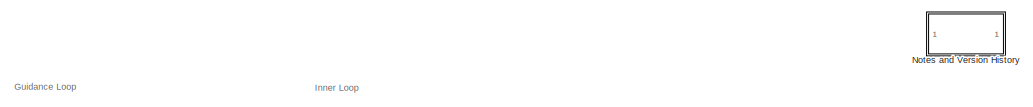
[diagram: root canvas - part 1/4, top center region]
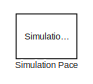
[diagram: root canvas - part 2/4, top left region]
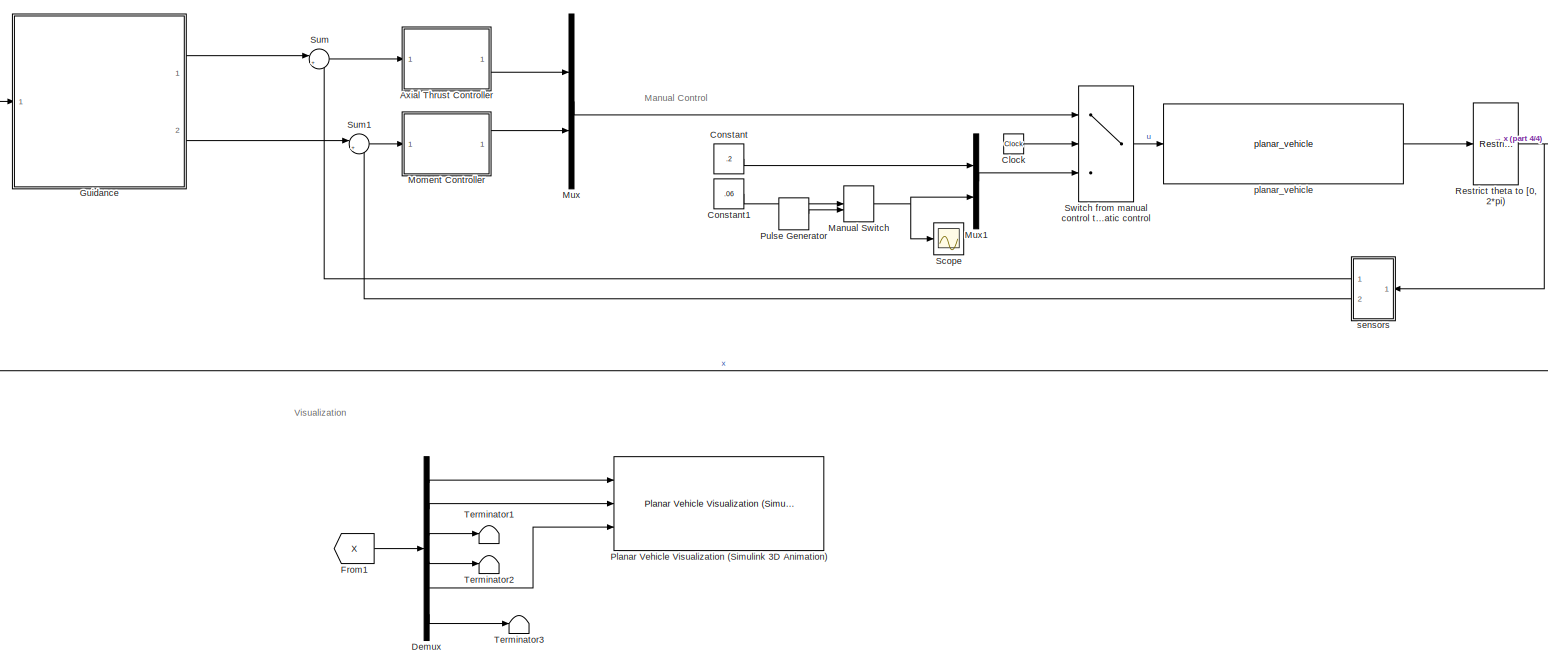
[diagram: root canvas - part 3/4, most of the canvas]
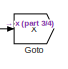
[diagram: root canvas - part 4/4, middle right region]
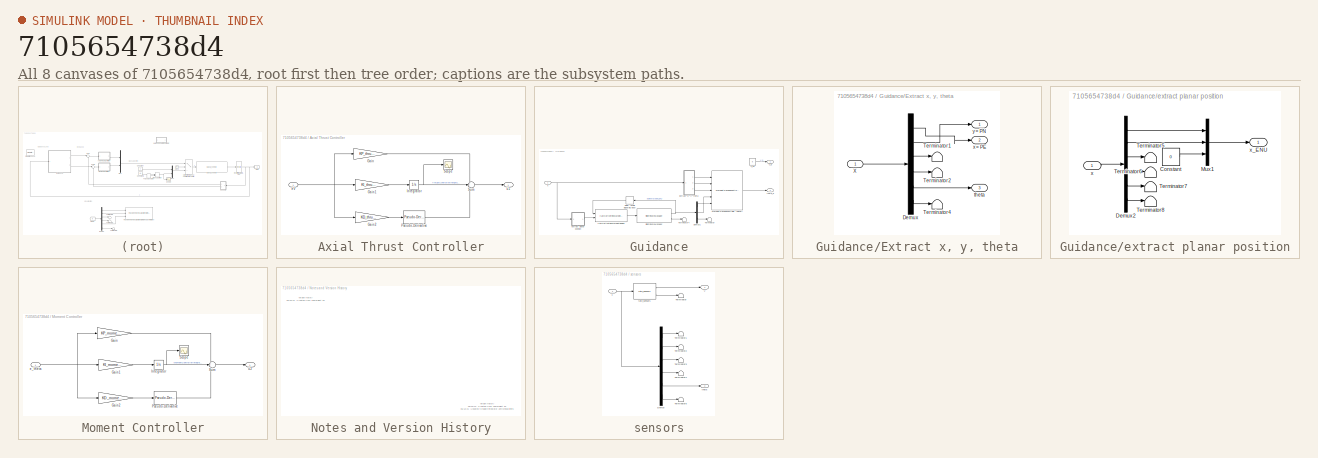
[diagram: thumbnail index - all 8 canvases of the model, root first then tree order]
MODEL slx_7105654738d4
KIND model
CONFIG AbsTol = auto
CONFIG EnableMultiTasking = off
CONFIG FixedStep = auto
CONFIG MaxStep = deltaTMax
CONFIG MinStep = auto
CONFIG RelTol = 1e-3
CONFIG SampleTimeConstraint = Unconstrained
CONFIG Solver = VariableStepAuto
CONFIG SolverName = VariableStepAuto
CONFIG StartTime = 0.0
CONFIG StopTime = t_final
BLOCK [SubSystem] Axial Thrust Controller
  Ports = [1, 1]
  RequestExecContextInheritance = off
BLOCK [Gain] Axial Thrust Controller/Gain
  Gain = KP_thrust
  OutDataTypeStr = Inherit: Inherit via internal rule
  ParamDataTypeStr = Inherit: Inherit via internal rule
  SaturateOnIntegerOverflow = off
BLOCK [Gain] Axial Thrust Controller/Gain1
  Gain = KI_thrust
  OutDataTypeStr = Inherit: Inherit via internal rule
  ParamDataTypeStr = Inherit: Inherit via internal rule
  SaturateOnIntegerOverflow = off
BLOCK [Gain] Axial Thrust Controller/Gain2
  Gain = KD_thrust
  OutDataTypeStr = Inherit: Inherit via internal rule
  ParamDataTypeStr = Inherit: Inherit via internal rule
  SaturateOnIntegerOverflow = off
BLOCK [Integrator] Axial Thrust Controller/Integrator
  LowerSaturationLimit = -xILimitThrust
  Ports = [1, 1]
  UpperSaturationLimit = xILimitThrust
BLOCK [Reference] Axial Thrust Controller/Pseudo-Derivative  REF=UWControlsBlockset/Pseudo-Derivative
  Ports = [1, 1]
  SourceBlock = UWControlsBlockset/Pseudo-Derivative
BLOCK [Scope] Axial Thrust Controller/Scope
  Floating = off
  NumInputPorts = 1
  Ports = [1]
  ScopeSpecificationString = Simulink.scopes.TimeScopeBlockCfg('CurrentConfiguration', extmgr.ConfigurationSet(extmgr.Configuration('Core','General UI',true),extmgr.Configuration('Core','Source UI',true),extmgr.Configuration('Sources','WiredSimulink',true,'DataLoggingVariableName','ScopeData1'),extmgr.Configuration('Visuals','Time Domain',true,'SerializedDisplays',{struct('MinYLimReal','-1.00000','MaxYLimReal','1.00000','YLab...<+1420ch>
BLOCK [Sum] Axial Thrust Controller/Sum
  IconShape = round
  InputSameDT = off
  Inputs = +++
  OutDataTypeStr = Inherit: Inherit via internal rule
  Ports = [3, 1]
  SaturateOnIntegerOverflow = off
BLOCK [Inport] Axial Thrust Controller/eV
  IconDisplay = Port number
BLOCK [Outport] Axial Thrust Controller/u1
  IconDisplay = Port number
BLOCK [Clock] Clock
BLOCK [Constant] Constant
  Value = .2
BLOCK [Constant] Constant1
  Value = .06
BLOCK [Demux] Demux
  DisplayOption = bar
  Outputs = 6
  Ports = [1, 6]
BLOCK [From] From1
  GotoTag = X
BLOCK [Goto] Goto
  GotoTag = X
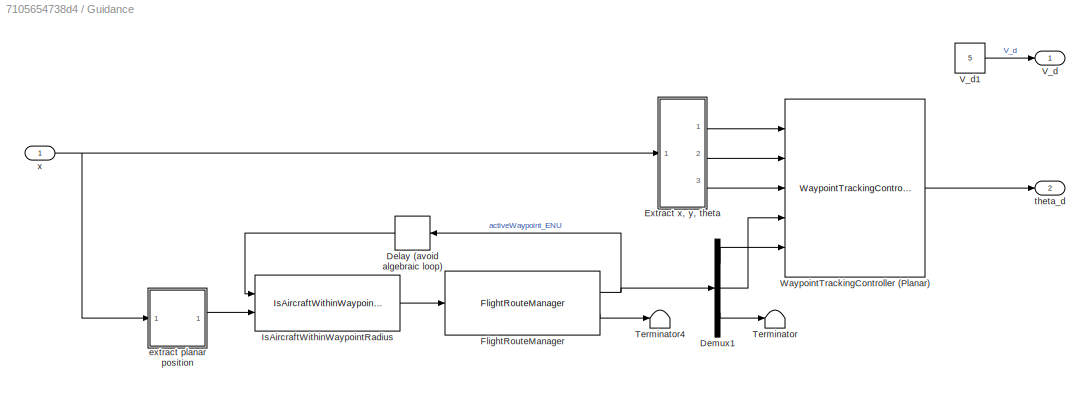
BLOCK [SubSystem] Guidance
  Ports = [1, 2]
  RequestExecContextInheritance = off
BLOCK [Delay] Guidance/Delay (avoid algebraic loop)
  DelayLength = 1
  InputPortMap = u0
  Ports = [1, 1]
BLOCK [Demux] Guidance/Demux1
  DisplayOption = bar
  Outputs = 3
  Ports = [1, 3]
BLOCK [SubSystem] Guidance/Extract x, y, theta
  Ports = [1, 3]
  RequestExecContextInheritance = off
BLOCK [Demux] Guidance/Extract x, y, theta/Demux
  DisplayOption = bar
  Outputs = 6
  Ports = [1, 6]
BLOCK [Terminator] Guidance/Extract x, y, theta/Terminator1
BLOCK [Terminator] Guidance/Extract x, y, theta/Terminator2
BLOCK [Terminator] Guidance/Extract x, y, theta/Terminator4
BLOCK [Inport] Guidance/Extract x, y, theta/X
  IconDisplay = Port number
BLOCK [Outport] Guidance/Extract x, y, theta/theta
  IconDisplay = Port number
  Port = 3
BLOCK [Outport] Guidance/Extract x, y, theta/x = PE
  IconDisplay = Port number
  Port = 2
BLOCK [Outport] Guidance/Extract x, y, theta/y = PN
  IconDisplay = Port number
BLOCK [Reference] Guidance/FlightRouteManager  REF=UWAerospaceBlockset_Controllers/FlightRouteManager
  Ports = [1, 2]
  SourceBlock = UWAerospaceBlockset_Controllers/FlightRouteManager
BLOCK [Reference] Guidance/IsAircraftWithinWaypointRadius  REF=UWAerospaceBlockset_Controllers/IsAircraftWithinWaypointRadius
  Ports = [2, 1]
  SourceBlock = UWAerospaceBlockset_Controllers/IsAircraftWithinWaypointRadius
BLOCK [Terminator] Guidance/Terminator
BLOCK [Terminator] Guidance/Terminator4
BLOCK [Outport] Guidance/V_d
  IconDisplay = Port number
BLOCK [Constant] Guidance/V_d1
  Value = 5
BLOCK [Reference] Guidance/WaypointTrackingController (Planar)  REF=UWAerospaceBlockset_Controllers/WaypointTrackingController (Planar)
  Ports = [5, 1]
  SourceBlock = UWAerospaceBlockset_Controllers/WaypointTrackingController (Planar)
BLOCK [SubSystem] Guidance/extract planar position
  Ports = [1, 1]
  RequestExecContextInheritance = off
BLOCK [Constant] Guidance/extract planar position/Constant
  Value = 0
BLOCK [Demux] Guidance/extract planar position/Demux2
  DisplayOption = bar
  Outputs = 6
  Ports = [1, 6]
BLOCK [Mux] Guidance/extract planar position/Mux1
  DisplayOption = bar
  Inputs = 3
  Ports = [3, 1]
BLOCK [Terminator] Guidance/extract planar position/Terminator5
BLOCK [Terminator] Guidance/extract planar position/Terminator6
BLOCK [Terminator] Guidance/extract planar position/Terminator7
BLOCK [Terminator] Guidance/extract planar position/Terminator8
BLOCK [Inport] Guidance/extract planar position/x
  IconDisplay = Port number
BLOCK [Outport] Guidance/extract planar position/x_ENU
  IconDisplay = Port number
BLOCK [Outport] Guidance/theta_d
  IconDisplay = Port number
  Port = 2
BLOCK [Inport] Guidance/x
  IconDisplay = Port number
BLOCK [ManualSwitch] Manual Switch
  CurrentSetting = 0
BLOCK [SubSystem] Moment Controller
  Ports = [1, 1]
  RequestExecContextInheritance = off
BLOCK [Gain] Moment Controller/Gain
  Gain = KP_moment
  OutDataTypeStr = Inherit: Inherit via internal rule
  ParamDataTypeStr = Inherit: Inherit via internal rule
  SaturateOnIntegerOverflow = off
BLOCK [Gain] Moment Controller/Gain1
  Gain = KI_moment
  OutDataTypeStr = Inherit: Inherit via internal rule
  ParamDataTypeStr = Inherit: Inherit via internal rule
  SaturateOnIntegerOverflow = off
BLOCK [Gain] Moment Controller/Gain2
  Gain = KD_moment
  OutDataTypeStr = Inherit: Inherit via internal rule
  ParamDataTypeStr = Inherit: Inherit via internal rule
  SaturateOnIntegerOverflow = off
BLOCK [Integrator] Moment Controller/Integrator
  LimitOutput = on
  LowerSaturationLimit = -xILimitMoment
  Ports = [1, 1]
  UpperSaturationLimit = xILimitMoment
BLOCK [Reference] Moment Controller/Pseudo-Derivative  REF=UWControlsBlockset/Pseudo-Derivative
  Ports = [1, 1]
  SourceBlock = UWControlsBlockset/Pseudo-Derivative
BLOCK [Scope] Moment Controller/Scope
  Floating = off
  NumInputPorts = 1
  Ports = [1]
  ScopeSpecificationString = Simulink.scopes.TimeScopeBlockCfg('CurrentConfiguration', extmgr.ConfigurationSet(extmgr.Configuration('Core','General UI',true),extmgr.Configuration('Core','Source UI',true),extmgr.Configuration('Sources','WiredSimulink',true),extmgr.Configuration('Visuals','Time Domain',true,'SerializedDisplays',{struct('MinYLimReal','-3.5144','MaxYLimReal','0.41697','YLabelReal','','MinYLimMag','0.00000','MaxYL...<+1380ch>
BLOCK [Sum] Moment Controller/Sum
  IconShape = round
  InputSameDT = off
  Inputs = +++
  OutDataTypeStr = Inherit: Inherit via internal rule
  Ports = [3, 1]
  SaturateOnIntegerOverflow = off
BLOCK [Inport] Moment Controller/e_theta
  IconDisplay = Port number
BLOCK [Outport] Moment Controller/u2
  IconDisplay = Port number
BLOCK [Mux] Mux
  DisplayOption = bar
  Inputs = 2
  Ports = [2, 1]
BLOCK [Mux] Mux1
  DisplayOption = bar
  Inputs = 2
  Ports = [2, 1]
BLOCK [SubSystem] Notes and Version History
  Ports = []
  RequestExecContextInheritance = off
BLOCK [Reference] Planar Vehicle Visualization (Simulink 3D Animation)  REF=PlanarVehicle/Planar Vehicle Visualization (Simulink 3D Animation)
  Ports = [3]
  SourceBlock = PlanarVehicle/Planar Vehicle Visualization (Simulink 3D Animation)
BLOCK [DiscretePulseGenerator] Pulse Generator
  Period = 100
  Ports = [0, 1]
  PulseType = Time based
  PulseWidth = 4.7
BLOCK [Reference] Restrict theta to [0, 2*pi)  REF=PlanarVehicle/Restrict theta to [0, 2*pi)
  Ports = [1, 1]
  SourceBlock = PlanarVehicle/Restrict theta to [0, 2*pi)
  SourceType = SubSystem
BLOCK [Scope] Scope
  Floating = off
  NumInputPorts = 1
  Ports = [1]
  ScopeSpecificationString = Simulink.scopes.TimeScopeBlockCfg('CurrentConfiguration', extmgr.ConfigurationSet(extmgr.Configuration('Core','General UI',true),extmgr.Configuration('Core','Source UI',true),extmgr.Configuration('Sources','WiredSimulink',true,'DataLoggingVariableName','ScopeData1'),extmgr.Configuration('Visuals','Time Domain',true,'SerializedDisplays',{struct('MinYLimReal','-0.125','MaxYLimReal','1.125','YLabelRe...<+1415ch>
BLOCK [Reference] Simulation Pace  REF=aerolibanimutils/Simulation Pace
  AttributesFormatString = %<SleepMode>\n%<SimulationPace> sec/sec
  Commented = on
  Ports = []
  SourceBlock = aerolibanimutils/Simulation Pace
  SourceProductBaseCode = AE
  SourceProductName = Aerospace Blockset
  SourceType = Simulation Pace
BLOCK [Sum] Sum
  IconShape = round
  InputSameDT = off
  Inputs = |+-
  OutDataTypeStr = Inherit: Inherit via internal rule
  Ports = [2, 1]
  SaturateOnIntegerOverflow = off
BLOCK [Sum] Sum1
  IconShape = round
  InputSameDT = off
  Inputs = |+-
  OutDataTypeStr = Inherit: Inherit via internal rule
  Ports = [2, 1]
  SaturateOnIntegerOverflow = off
BLOCK [Switch] Switch from manual control to automatic control
  InputSameDT = off
  SaturateOnIntegerOverflow = off
  Threshold = switchTime
BLOCK [Terminator] Terminator1
BLOCK [Terminator] Terminator2
BLOCK [Terminator] Terminator3
BLOCK [Reference] planar_vehicle  REF=PlanarVehicle/planar_vehicle
  Ports = [1, 1]
  SourceBlock = PlanarVehicle/planar_vehicle
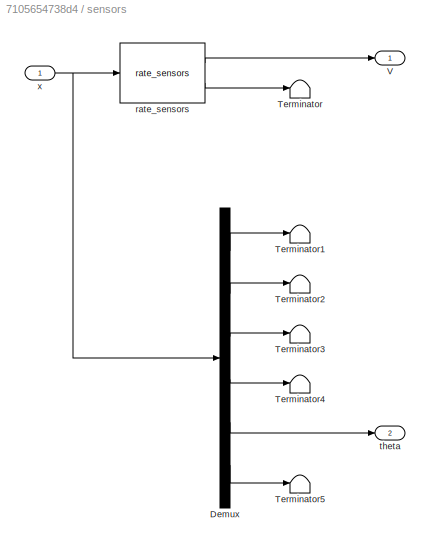
BLOCK [SubSystem] sensors
  Ports = [1, 2]
  RequestExecContextInheritance = off
BLOCK [Demux] sensors/Demux
  DisplayOption = bar
  Outputs = 6
  Ports = [1, 6]
BLOCK [Terminator] sensors/Terminator
BLOCK [Terminator] sensors/Terminator1
BLOCK [Terminator] sensors/Terminator2
BLOCK [Terminator] sensors/Terminator3
BLOCK [Terminator] sensors/Terminator4
BLOCK [Terminator] sensors/Terminator5
BLOCK [Outport] sensors/V
  IconDisplay = Port number
BLOCK [Reference] sensors/rate_sensors  REF=PlanarVehicle/rate_sensors
  Ports = [1, 2]
  SourceBlock = PlanarVehicle/rate_sensors
BLOCK [Outport] sensors/theta
  IconDisplay = Port number
  Port = 2
BLOCK [Inport] sensors/x
  IconDisplay = Port number
ANNOTATION (root): Guidance Loop
ANNOTATION (root): Inner Loop
ANNOTATION (root): Manual Control
ANNOTATION (root): Visualization
ANNOTATION Notes and Version History: Version History 05/02/21: Created from final project p2
ANNOTATION Notes and Version History: Version History 05/02/21: Created from final project p2 05/12/21: Updated to isolate integrator anti-windup limits
LINE Axial Thrust Controller/Gain1:1 -> Axial Thrust Controller/Integrator:1
LINE Axial Thrust Controller/Gain2:1 -> Axial Thrust Controller/Pseudo-Derivative:1
LINE Axial Thrust Controller/Gain:1 -> Axial Thrust Controller/Sum:1
NET Axial Thrust Controller/Integrator:1 -> Axial Thrust Controller/Scope:1, Axial Thrust Controller/Sum:2
LINE Axial Thrust Controller/Pseudo-Derivative:1 -> Axial Thrust Controller/Sum:3
LINE Axial Thrust Controller/Sum:1 -> Axial Thrust Controller/u1:1
NET Axial Thrust Controller/eV:1 -> Axial Thrust Controller/Gain1:1, Axial Thrust Controller/Gain2:1, Axial Thrust Controller/Gain:1
LINE Axial Thrust Controller:1 -> Mux:1
LINE Clock:1 -> Switch from manual control to automatic control:2
LINE Constant1:1 -> Manual Switch:1
LINE Constant:1 -> Mux1:1
LINE Demux:1 -> Planar Vehicle Visualization (Simulink 3D Animation):1
LINE Demux:2 -> Planar Vehicle Visualization (Simulink 3D Animation):2
LINE Demux:3 -> Terminator1:1
LINE Demux:4 -> Terminator2:1
LINE Demux:5 -> Planar Vehicle Visualization (Simulink 3D Animation):3
LINE Demux:6 -> Terminator3:1
LINE From1:1 -> Demux:1
LINE Guidance/Delay (avoid algebraic loop):1 -> Guidance/IsAircraftWithinWaypointRadius:1
LINE Guidance/Demux1:1 -> Guidance/WaypointTrackingController (Planar):5
LINE Guidance/Demux1:2 -> Guidance/WaypointTrackingController (Planar):4
LINE Guidance/Demux1:3 -> Guidance/Terminator:1
LINE Guidance/Extract x, y, theta/Demux:1 -> Guidance/Extract x, y, theta/x = PE:1
LINE Guidance/Extract x, y, theta/Demux:2 -> Guidance/Extract x, y, theta/y = PN:1
LINE Guidance/Extract x, y, theta/Demux:3 -> Guidance/Extract x, y, theta/Terminator1:1
LINE Guidance/Extract x, y, theta/Demux:4 -> Guidance/Extract x, y, theta/Terminator2:1
LINE Guidance/Extract x, y, theta/Demux:5 -> Guidance/Extract x, y, theta/theta:1
LINE Guidance/Extract x, y, theta/Demux:6 -> Guidance/Extract x, y, theta/Terminator4:1
LINE Guidance/Extract x, y, theta/X:1 -> Guidance/Extract x, y, theta/Demux:1
LINE Guidance/Extract x, y, theta:1 -> Guidance/WaypointTrackingController (Planar):1
LINE Guidance/Extract x, y, theta:2 -> Guidance/WaypointTrackingController (Planar):2
LINE Guidance/Extract x, y, theta:3 -> Guidance/WaypointTrackingController (Planar):3
NET Guidance/FlightRouteManager:1 -> Guidance/Delay (avoid algebraic loop):1, Guidance/Demux1:1
LINE Guidance/FlightRouteManager:2 -> Guidance/Terminator4:1
LINE Guidance/IsAircraftWithinWaypointRadius:1 -> Guidance/FlightRouteManager:1
LINE Guidance/V_d1:1 -> Guidance/V_d:1
LINE Guidance/WaypointTrackingController (Planar):1 -> Guidance/theta_d:1
LINE Guidance/extract planar position/Constant:1 -> Guidance/extract planar position/Mux1:3
LINE Guidance/extract planar position/Demux2:1 -> Guidance/extract planar position/Mux1:1
LINE Guidance/extract planar position/Demux2:2 -> Guidance/extract planar position/Mux1:2
LINE Guidance/extract planar position/Demux2:3 -> Guidance/extract planar position/Terminator5:1
LINE Guidance/extract planar position/Demux2:4 -> Guidance/extract planar position/Terminator6:1
LINE Guidance/extract planar position/Demux2:5 -> Guidance/extract planar position/Terminator7:1
LINE Guidance/extract planar position/Demux2:6 -> Guidance/extract planar position/Terminator8:1
LINE Guidance/extract planar position/Mux1:1 -> Guidance/extract planar position/x_ENU:1
LINE Guidance/extract planar position/x:1 -> Guidance/extract planar position/Demux2:1
LINE Guidance/extract planar position:1 -> Guidance/IsAircraftWithinWaypointRadius:2
NET Guidance/x:1 -> Guidance/Extract x, y, theta:1, Guidance/extract planar position:1
LINE Guidance:1 -> Sum:1
LINE Guidance:2 -> Sum1:1
NET Manual Switch:1 -> Mux1:2, Scope:1
LINE Moment Controller/Gain1:1 -> Moment Controller/Integrator:1
LINE Moment Controller/Gain2:1 -> Moment Controller/Pseudo-Derivative:1
LINE Moment Controller/Gain:1 -> Moment Controller/Sum:1
NET Moment Controller/Integrator:1 -> Moment Controller/Scope:1, Moment Controller/Sum:2
LINE Moment Controller/Pseudo-Derivative:1 -> Moment Controller/Sum:3
LINE Moment Controller/Sum:1 -> Moment Controller/u2:1
NET Moment Controller/e_theta:1 -> Moment Controller/Gain1:1, Moment Controller/Gain2:1, Moment Controller/Gain:1
LINE Moment Controller:1 -> Mux:2
LINE Mux1:1 -> Switch from manual control to automatic control:3
LINE Mux:1 -> Switch from manual control to automatic control:1
LINE Pulse Generator:1 -> Manual Switch:2
NET Restrict theta to [0, 2*pi):1 -> Goto:1, Guidance:1, sensors:1
LINE Sum1:1 -> Moment Controller:1
LINE Sum:1 -> Axial Thrust Controller:1
LINE Switch from manual control to automatic control:1 -> planar_vehicle:1
LINE planar_vehicle:1 -> Restrict theta to [0, 2*pi):1
LINE sensors/Demux:1 -> sensors/Terminator1:1
LINE sensors/Demux:2 -> sensors/Terminator2:1
LINE sensors/Demux:3 -> sensors/Terminator3:1
LINE sensors/Demux:4 -> sensors/Terminator4:1
LINE sensors/Demux:5 -> sensors/theta:1
LINE sensors/Demux:6 -> sensors/Terminator5:1
LINE sensors/rate_sensors:1 -> sensors/V:1
LINE sensors/rate_sensors:2 -> sensors/Terminator:1
NET sensors/x:1 -> sensors/Demux:1, sensors/rate_sensors:1
LINE sensors:1 -> Sum:2
LINE sensors:2 -> Sum1:2
note: NET lines group one-source signal fan-out (src -> all destinations, sorted); 1:1 wires keep LINE
